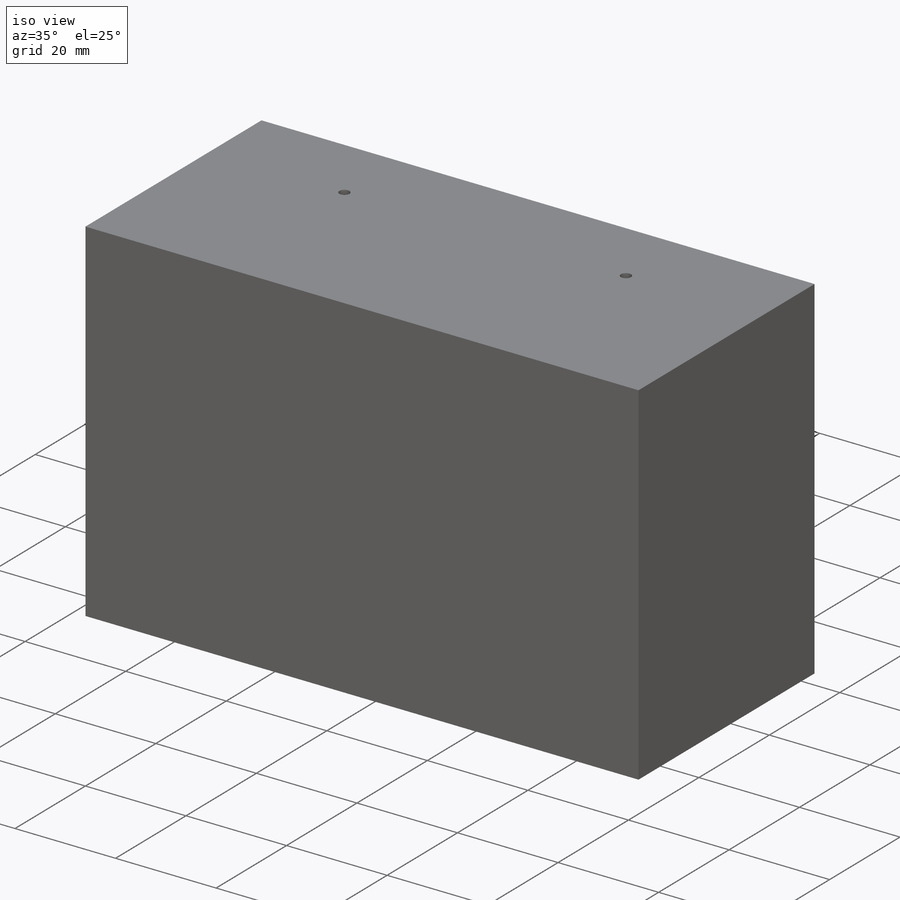
[diagram: iso view]
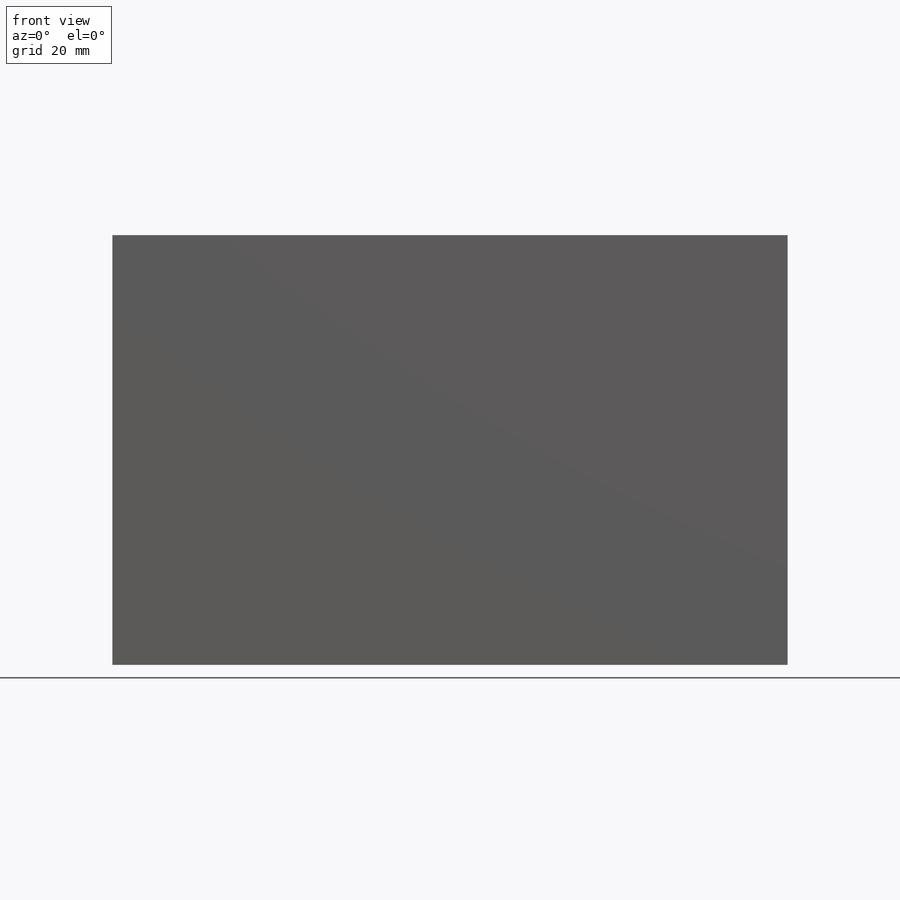
[diagram: front view]
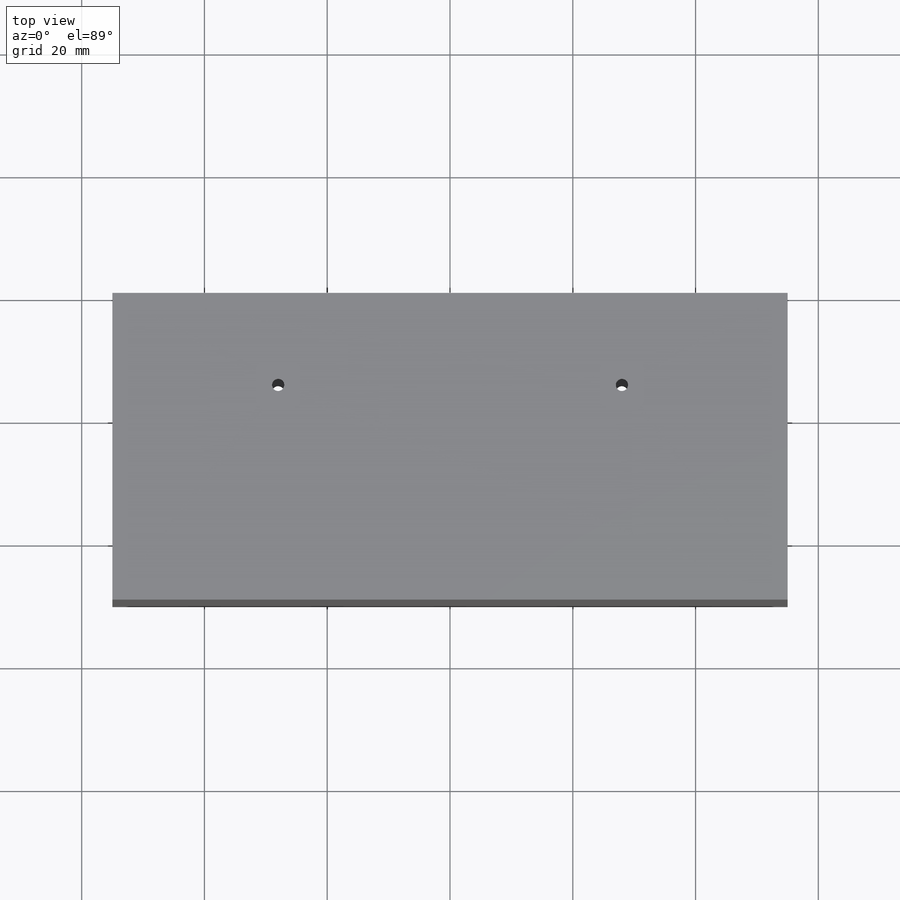
[diagram: top view]
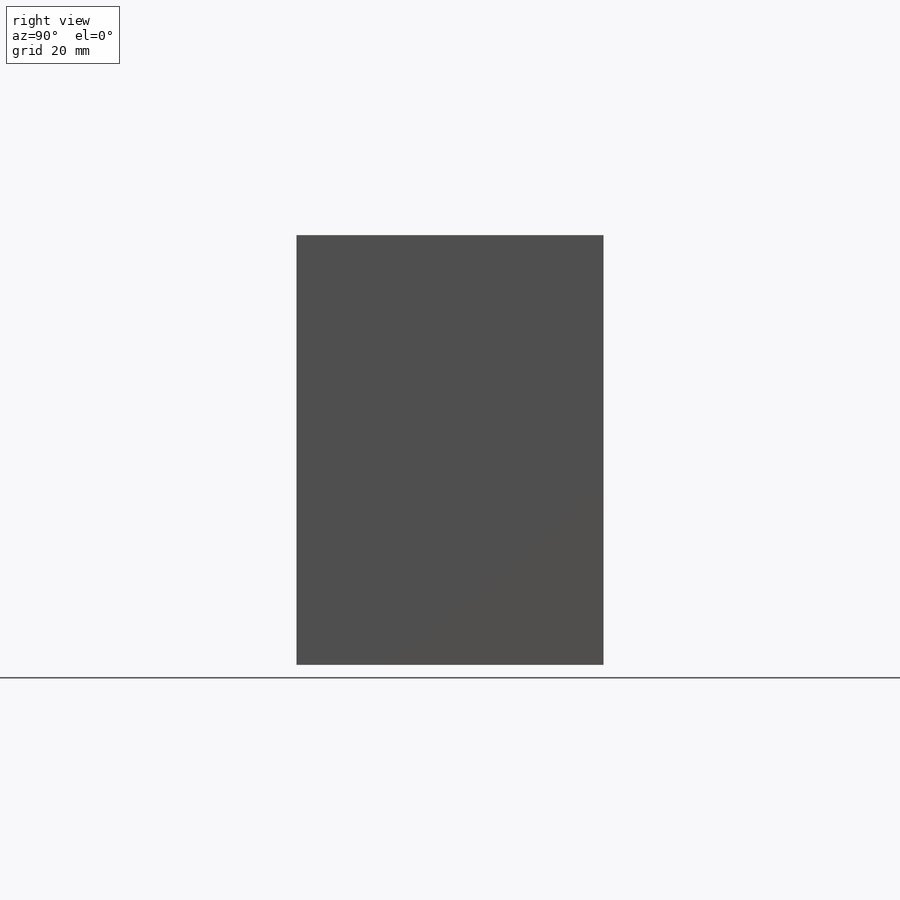
[diagram: right view]
SOLIDWORKS PART (.sldprt)
format: sldprt  version: not decoded by parser v0  size: 234,496 bytes
history: native  units: mm
features: plane x3, sketch x3, cut_extrude x2, material x1, extrude x1 (+10 scaffold rows collapsed)
feature tree (20):
  scaffold x10  (default folders/planes/origin — collapsed)
  material  "材質 <未指定>"
  plane  "前基準面"
  plane  "上基準面"
  plane  "右基準面"
  sketch  "草圖1"  dims[D1=110.0mm D2=70.0mm D3=35.0mm D4=55.0mm]
  extrude  "填料-伸長1"  Depth=50mm
  sketch  "草圖3"  dims[D1=100.0mm D2=60.0mm D3=30.0mm D4=50.0mm]
  cut_extrude  "除料-伸長1"  Depth=35mm
  sketch  "草圖4"  dims[D2=2.0mm D1=27.0mm D3=15.0mm D4=28.0mm]
  cut_extrude  "除料-伸長2"  Depth=40mm
decode coverage: 6 of 6 modeling features carry decoded parameters
note: suppression state not decoded; provenance and decode notes live in map.json
